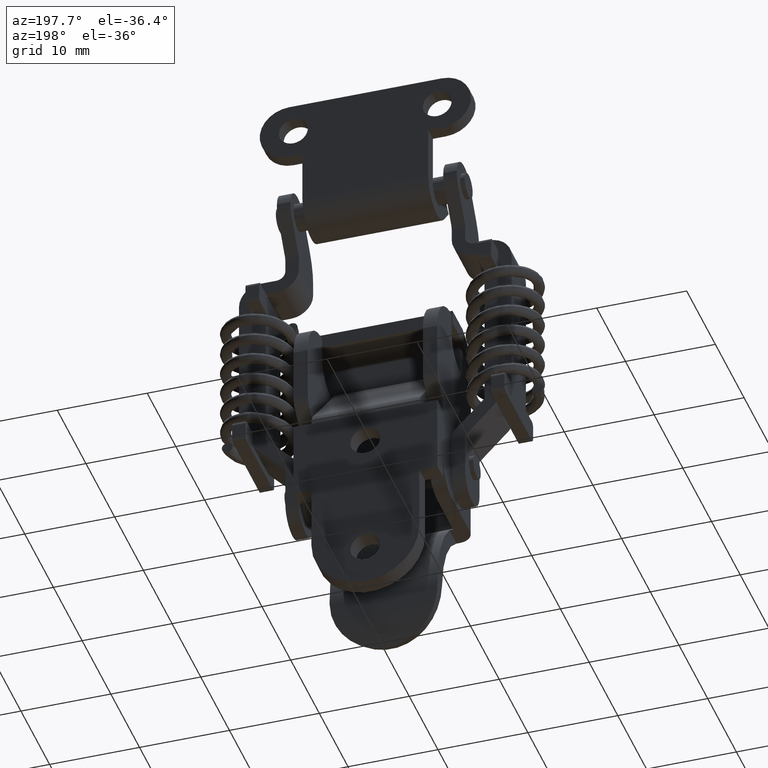
[diagram: clean part render]
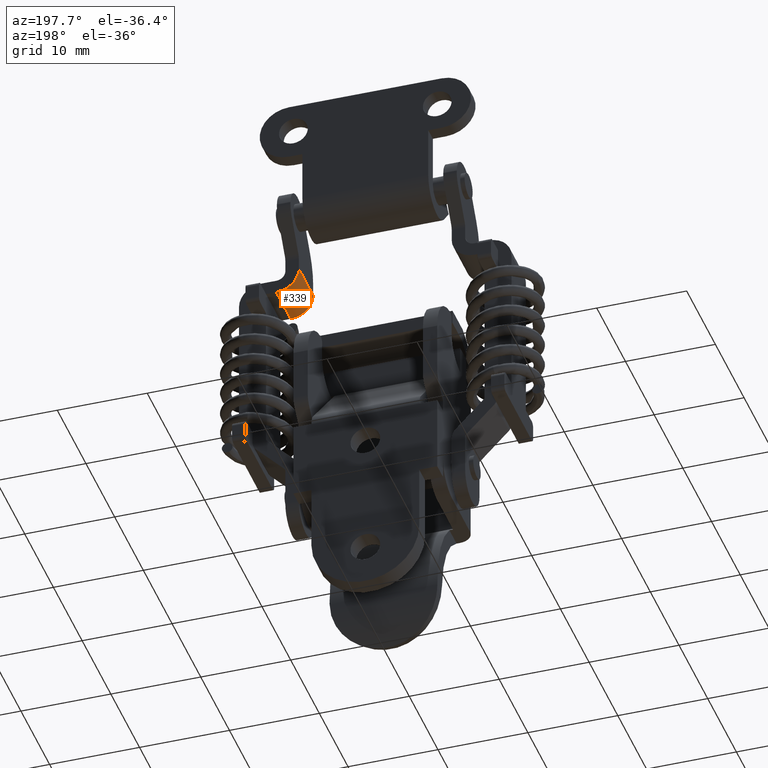
[diagram: same view with one face highlighted and labeled with its STEP entity id]
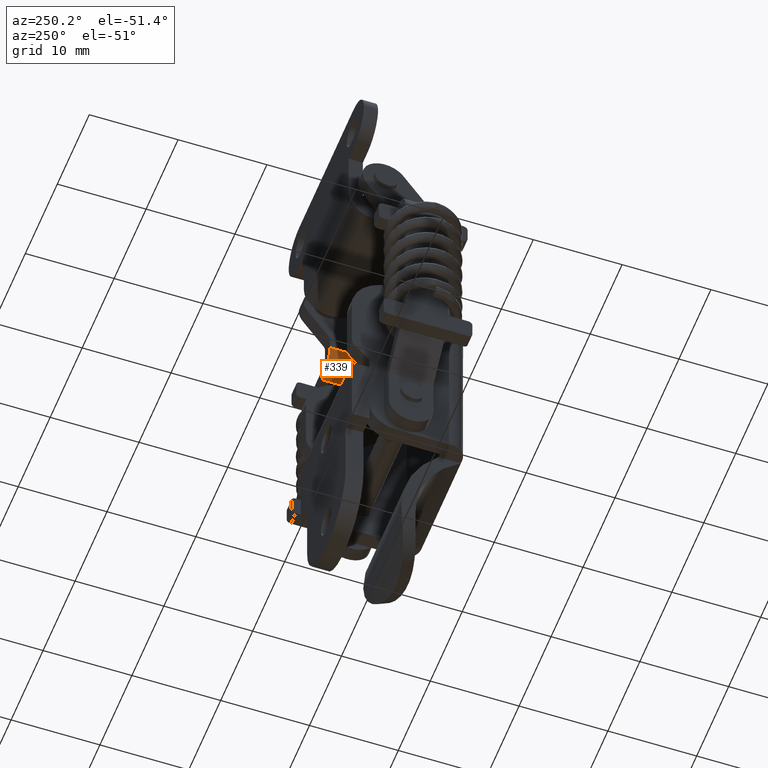
[diagram: same view with one face highlighted and labeled with its STEP entity id]
A machine part, auxiliary view. The second image highlights one B-rep face of the part: STEP entity #339.
A second angle (auxiliary view) of the same face is appended — the face is thin or edge-on in the first view.
In plain terms, the highlighted cylindrical surface (edge-blend (fillet) strip) has radius 2.5 mm, axis along (0, -1, 0).
Its self-contained STEP definition (entity closure, byte-faithful):
#339=ADVANCED_FACE('',(#960),#959,.T.);
#959=CYLINDRICAL_SURFACE('',#3172,2.50000000000E+00);
#960=FACE_OUTER_BOUND('',#3173,.T.);
#3169=CARTESIAN_POINT('',(1.09999993895E+01,-9.97410105260E+02,-6.44821116704E+00));
#3170=DIRECTION('',(0.00000000000E+00,-1.00000000000E+00,-0.00000000000E+00));
#3171=DIRECTION('',(-0.00000000000E+00,0.00000000000E+00,-1.00000000000E+00));
#3172=AXIS2_PLACEMENT_3D('',#3169,#3170,#3171);
#3173=EDGE_LOOP('',(#6505,#6506,#6507,#6508));
#6505=ORIENTED_EDGE('',*,*,#7679,.T.);
#6506=ORIENTED_EDGE('',*,*,#7665,.F.);
#6507=ORIENTED_EDGE('',*,*,#7680,.F.);
#6508=ORIENTED_EDGE('',*,*,#7638,.F.);
#7638=EDGE_CURVE('',#8839,#8846,#8847,.T.);
#7665=EDGE_CURVE('',#9023,#9030,#9031,.T.);
#7679=EDGE_CURVE('',#8839,#9030,#9123,.T.);
#7680=EDGE_CURVE('',#8846,#9023,#9129,.T.);
#8839=VERTEX_POINT('',#12754);
#8846=VERTEX_POINT('',#12758);
#8847=CIRCLE('',#12762,2.50000000000E+00);
#9023=VERTEX_POINT('',#12865);
#9030=VERTEX_POINT('',#12869);
#9031=CIRCLE('',#12873,2.50000000087E+00);
#9123=LINE('',#12925,#12926);
#9129=LINE('',#12928,#12929);
#12754=CARTESIAN_POINT('',(8.49999938946E+00,-5.35368268094E+00,-6.44821116704E+00));
#12758=CARTESIAN_POINT('',(1.09999993895E+01,-5.35368268094E+00,-8.94821116703E+00));
#12759=CARTESIAN_POINT('',(1.09999993895E+01,-5.35368268094E+00,-6.44821116704E+00));
#12760=DIRECTION('',(0.00000000000E+00,-1.00000000000E+00,-1.44902695574E-12));
#12761=DIRECTION('',(-0.00000000000E+00,1.44902695574E-12,-1.00000000000E+00));
#12762=AXIS2_PLACEMENT_3D('',#12759,#12760,#12761);
#12865=CARTESIAN_POINT('',(1.09999993895E+01,-3.54487377704E-01,-8.94821116703E+00));
#12869=CARTESIAN_POINT('',(8.49999938946E+00,-3.54553387563E-01,-6.44821116704E+00));
#12870=CARTESIAN_POINT('',(1.09999993895E+01,-3.54553387563E-01,-6.44821116704E+00));
#12871=DIRECTION('',(0.00000000000E+00,9.99999999651E-01,2.64039433866E-05));
#12872=DIRECTION('',(-0.00000000000E+00,-2.64039433866E-05,9.99999999651E-01));
#12873=AXIS2_PLACEMENT_3D('',#12870,#12871,#12872);
#12925=CARTESIAN_POINT('',(8.49999938946E+00,-5.35368268094E+00,-6.44821116704E+00));
#12926=VECTOR('',#12927,4.99912929338E+00);
#12927=DIRECTION('',(0.00000000000E+00,1.00000000000E+00,0.00000000000E+00));
#12928=CARTESIAN_POINT('',(1.09999993895E+01,-5.35368268094E+00,-8.94821116703E+00));
#12929=VECTOR('',#12930,4.99919530323E+00);
#12930=DIRECTION('',(0.00000000000E+00,1.00000000000E+00,0.00000000000E+00));